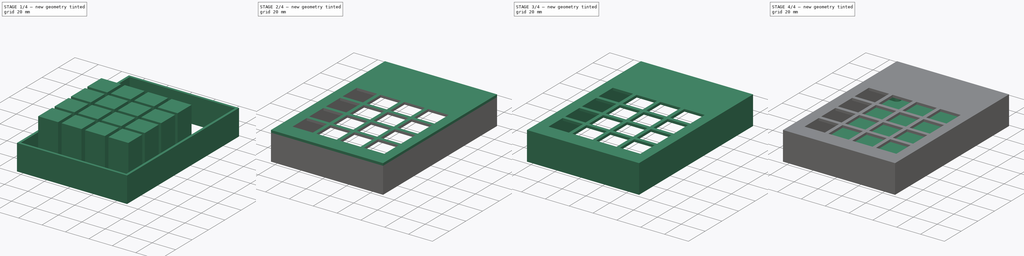
[diagram: build sequence overview — one tinted view per stage of 4, left to right]
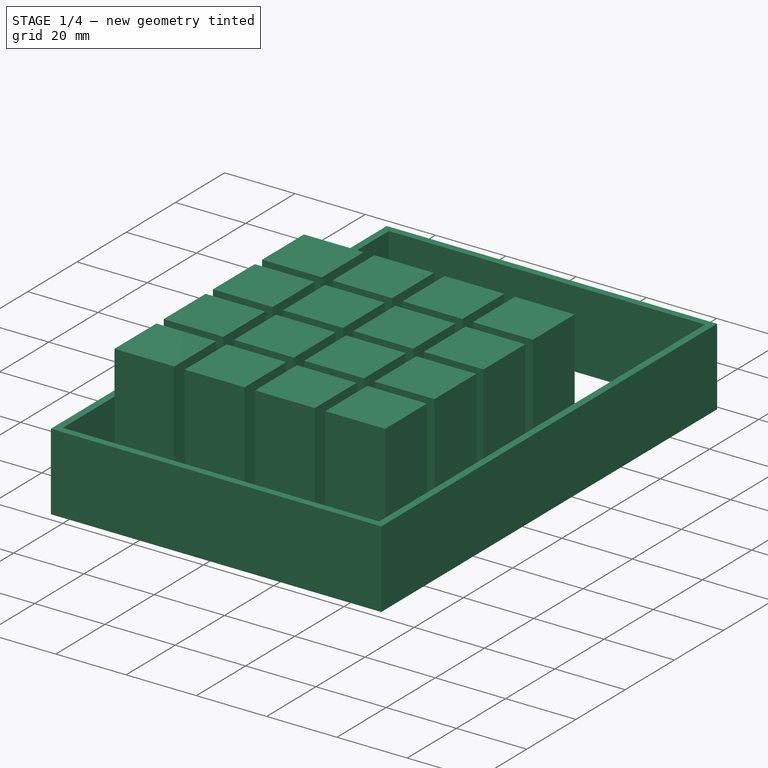
[diagram: stage 1 of 4 — iso view after this stage's code; geometry added in this stage tinted green]
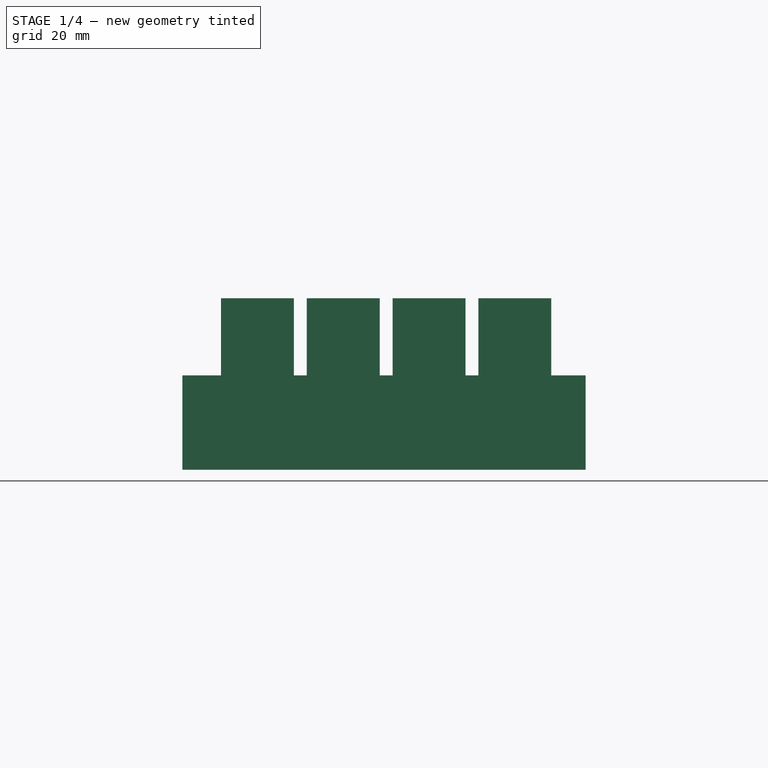
[diagram: stage 1 of 4 — front view after this stage's code; geometry added in this stage tinted green]
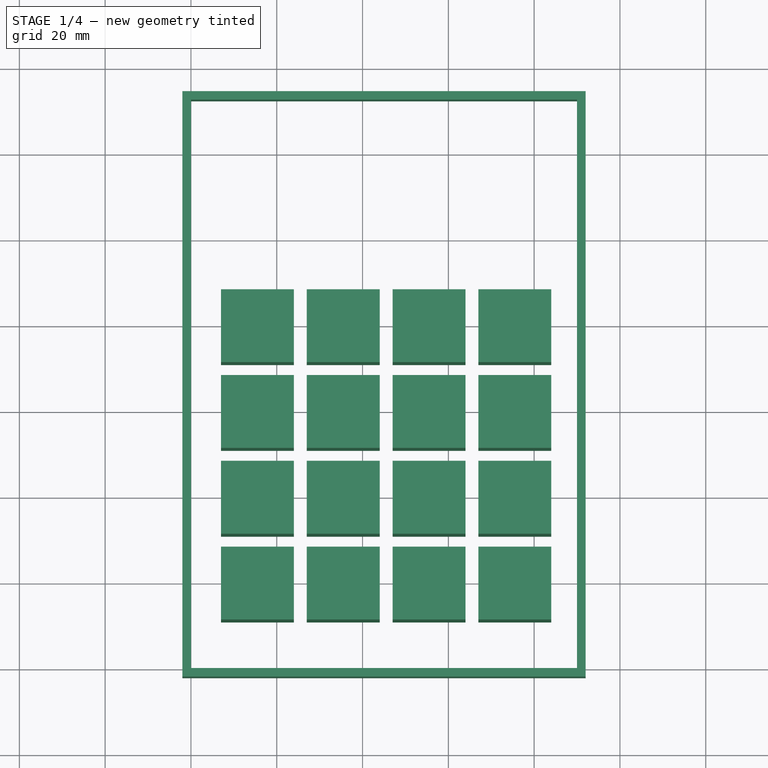
[diagram: stage 1 of 4 — top view after this stage's code; geometry added in this stage tinted green]
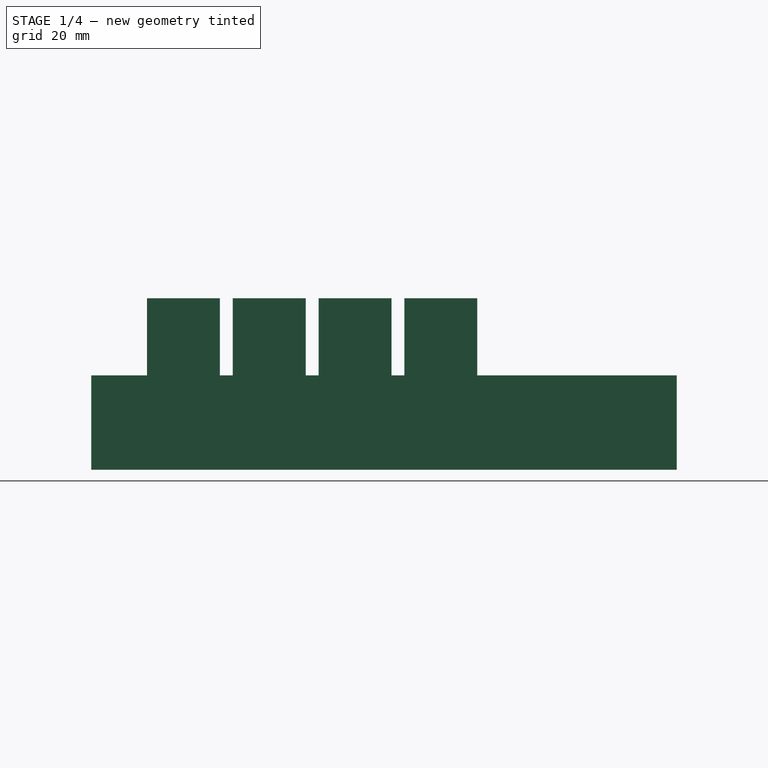
[diagram: stage 1 of 4 — right view after this stage's code; geometry added in this stage tinted green]
FCSTD DOCUMENT  (FreeCAD 0.15R4671 (Git))
Label: Enclosure
License: All rights reserved
LicenseURL: http://en.wikipedia.org/wiki/All_rights_reserved
objects: Sketcher::SketchObject×6, PartDesign::Pad×5, Part::MultiFuse×3, App::VRMLObject×1, Part::FeaturePython×1, Part::Cut×1, PartDesign::Pocket×1
note: 23 computed .brp shape members not serialized (recipe doc carries the construction recipe); baked Part::Feature solids carry a one-line shape summary decoded from their .brp

FEATURE [PartDesign::Pad] Pad004
  Length = 22
  Length2 = 100
  Sketch = -> Sketch
  Type = 0
FEATURE [Sketcher::SketchObject] Sketch006
  sketch-geometry (4):
    g0: LineSegment StartX=7 StartY=11 StartZ=0 EndX=24 EndY=11 EndZ=0
    g1: LineSegment StartX=24 StartY=11 StartZ=0 EndX=24 EndY=28 EndZ=0
    g2: LineSegment StartX=24 StartY=28 StartZ=0 EndX=7 EndY=28 EndZ=0
    g3: LineSegment StartX=7 StartY=28 StartZ=0 EndX=7 EndY=11 EndZ=0
  constraints (12):
    c: Coincident(g0,g1)
    c: Coincident(g1,g2)
    c: Coincident(g2,g3)
    c: Coincident(g3,g0)
    c: Horizontal(g0)
    c: Horizontal(g2)
    c: Vertical(g1)
    c: Vertical(g3)
    c: Distance(g1) = 17
    c: Distance(g0) = 17
    c: DistanceX(g-2,g0) = 7
    c: DistanceY(g-1,g0) = 11
FEATURE [PartDesign::Pad] Pad005
  Length = 40
  Length2 = 128
  Sketch = -> Sketch006
  Type = 0
FEATURE [Part::FeaturePython] Array  # Draft array (typed FeaturePython)
  Angle = 360
  ArrayType = 0
  Axis = (0,0,1)
  Base = -> Pad005
  Center = (0,0,0)
  Fuse = false
  IntervalAxis = (0,0,0)
  IntervalX = (20,0,0)
  IntervalY = (0,20,0)
  IntervalZ = (0,0,0)
  NumberPolar = 1
  NumberX = 4
  NumberY = 4
  NumberZ = 1
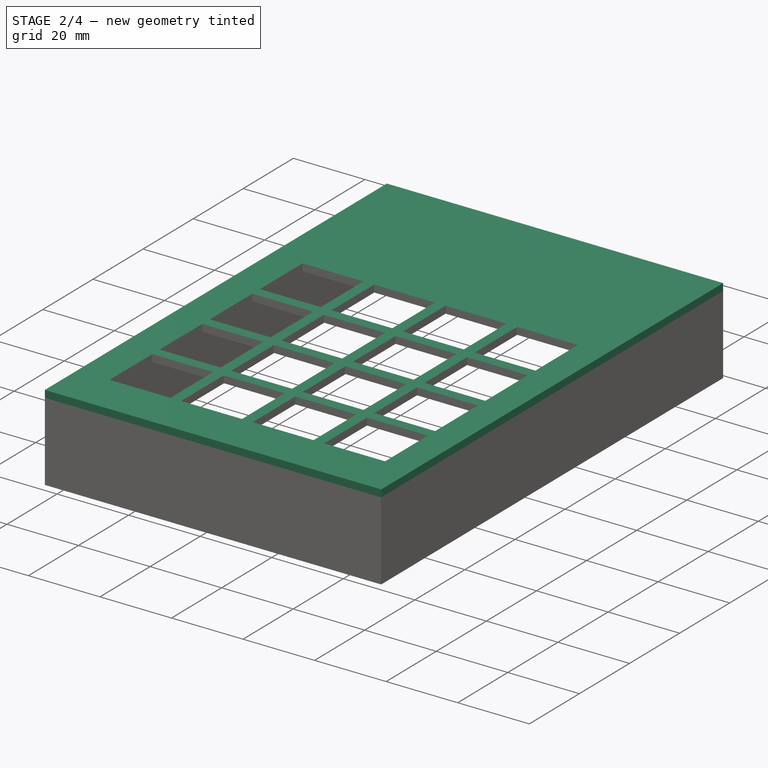
[diagram: stage 2 of 4 — iso view after this stage's code; geometry added in this stage tinted green]
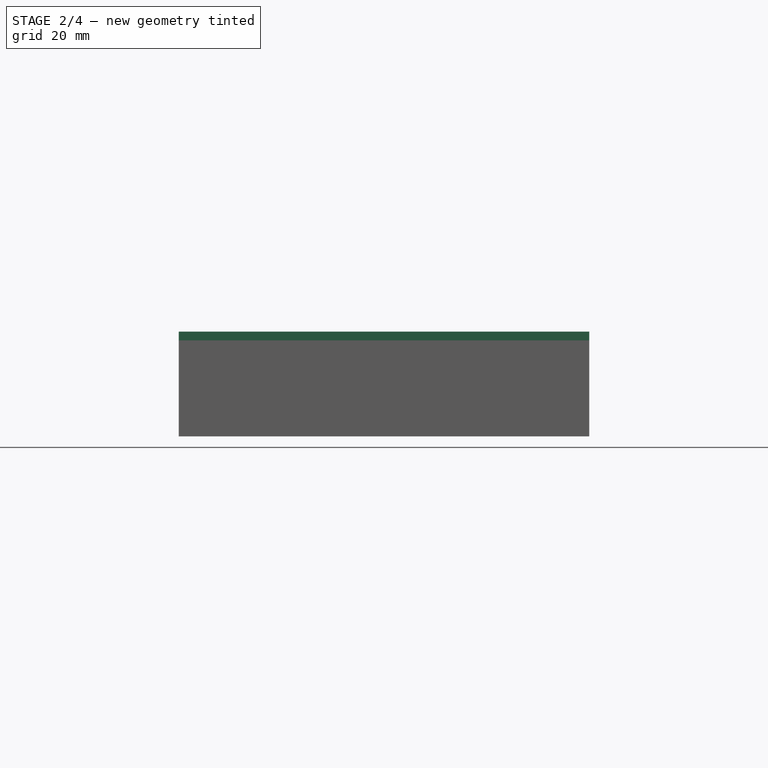
[diagram: stage 2 of 4 — front view after this stage's code; geometry added in this stage tinted green]
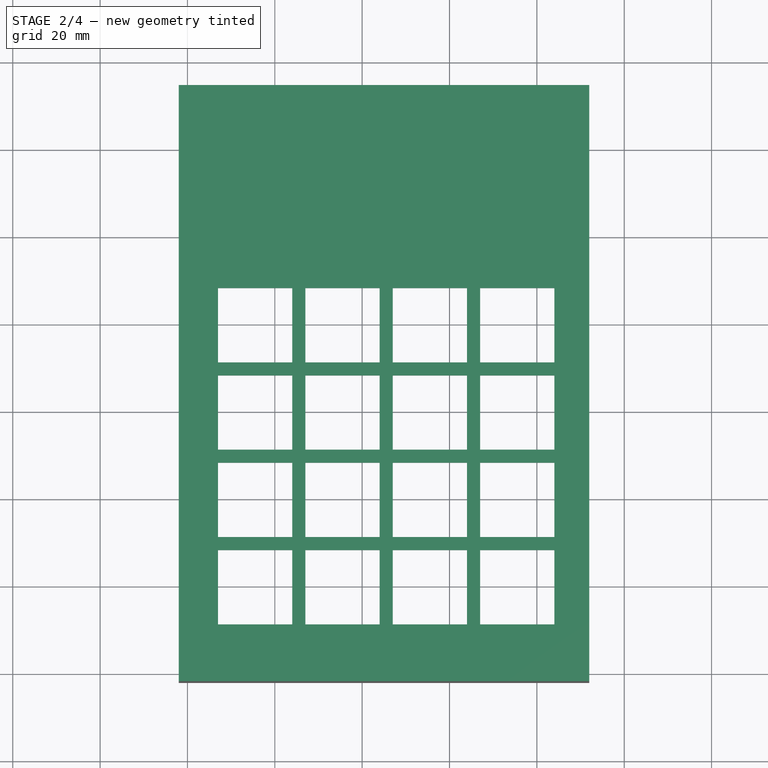
[diagram: stage 2 of 4 — top view after this stage's code; geometry added in this stage tinted green]
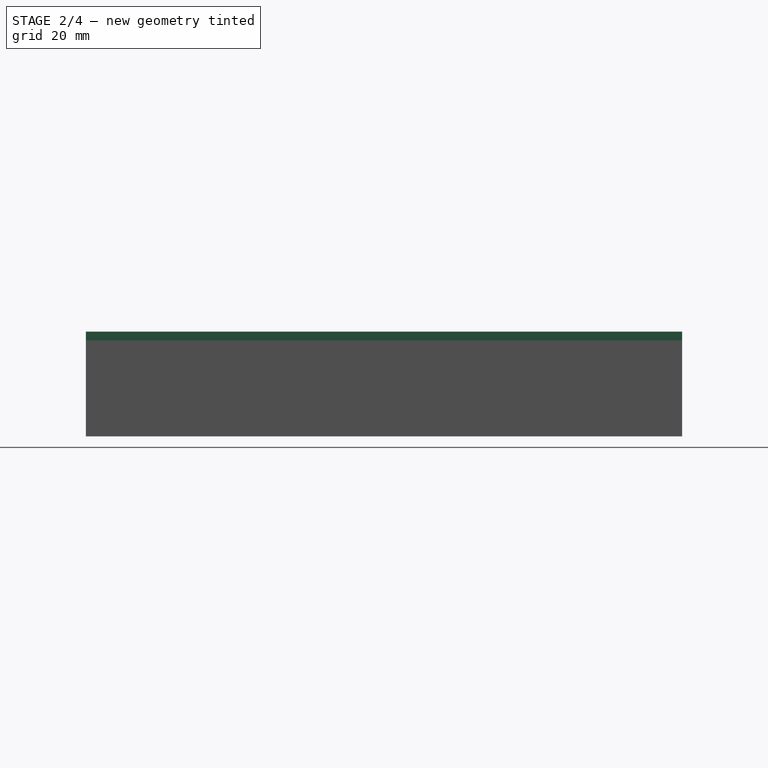
[diagram: stage 2 of 4 — right view after this stage's code; geometry added in this stage tinted green]
FEATURE [Sketcher::SketchObject] Sketch001  label="Top"
  Placement = pos=(0,0,22) rot=(0,0,1;0rad)
  Support = -> Pad004 [Face10]
  sketch-geometry (4):
    g0: LineSegment StartX=92 StartY=134.5 StartZ=0 EndX=-2 EndY=134.5 EndZ=0
    g1: LineSegment StartX=-2 StartY=134.5 StartZ=0 EndX=-2 EndY=-2 EndZ=0
    g2: LineSegment StartX=-2 StartY=-2 StartZ=0 EndX=92 EndY=-2 EndZ=0
    g3: LineSegment StartX=92 StartY=-2 StartZ=0 EndX=92 EndY=134.5 EndZ=0
  constraints (12):
    c: Coincident(g0,g1)
    c: Coincident(g1,g2)
    c: Coincident(g2,g3)
    c: Coincident(g3,g0)
    c: Horizontal(g0)
    c: Horizontal(g2)
    c: Vertical(g1)
    c: Vertical(g3)
    c: DistanceX(g-2,g1) = -2
    c: DistanceY(g-1,g1) = -2
    c: Distance(g2) = 94
    c: Distance(g3) = 136.5
FEATURE [PartDesign::Pad] Pad003
  Length = 2
  Length2 = 100
  Sketch = -> Sketch001
  Type = 0
FEATURE [Part::MultiFuse] Fusion001
  Shapes = -> [Pad003,Pad004]
FEATURE [Part::Cut] Cut
  Base = -> Fusion001
  Tool = -> Array
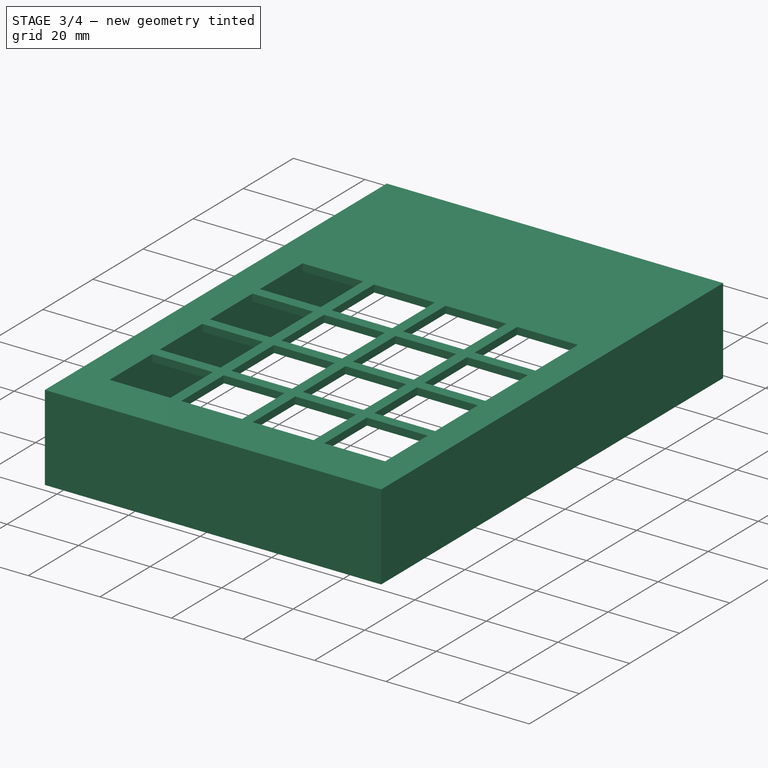
[diagram: stage 3 of 4 — iso view after this stage's code; geometry added in this stage tinted green]
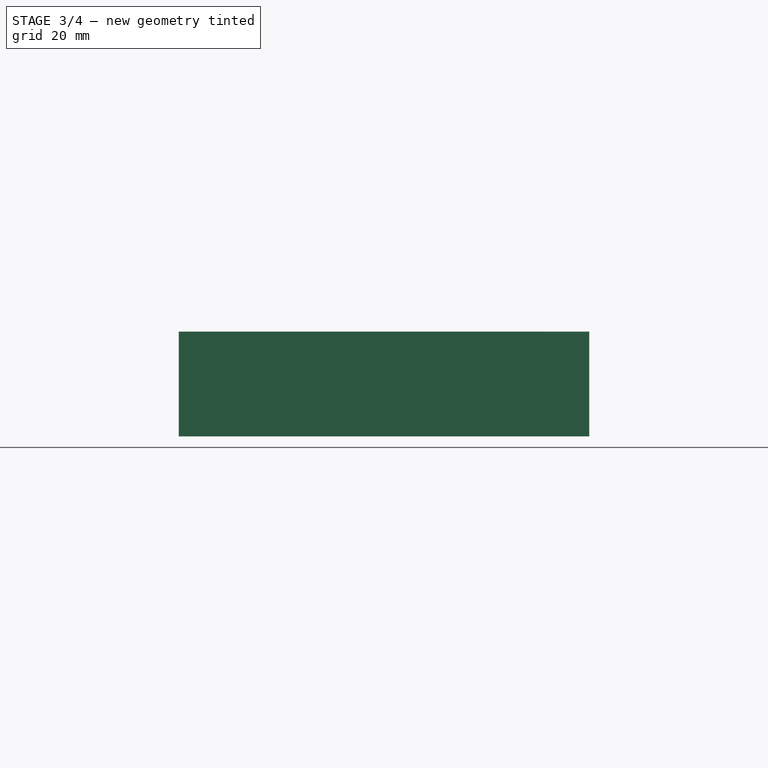
[diagram: stage 3 of 4 — front view after this stage's code; geometry added in this stage tinted green]
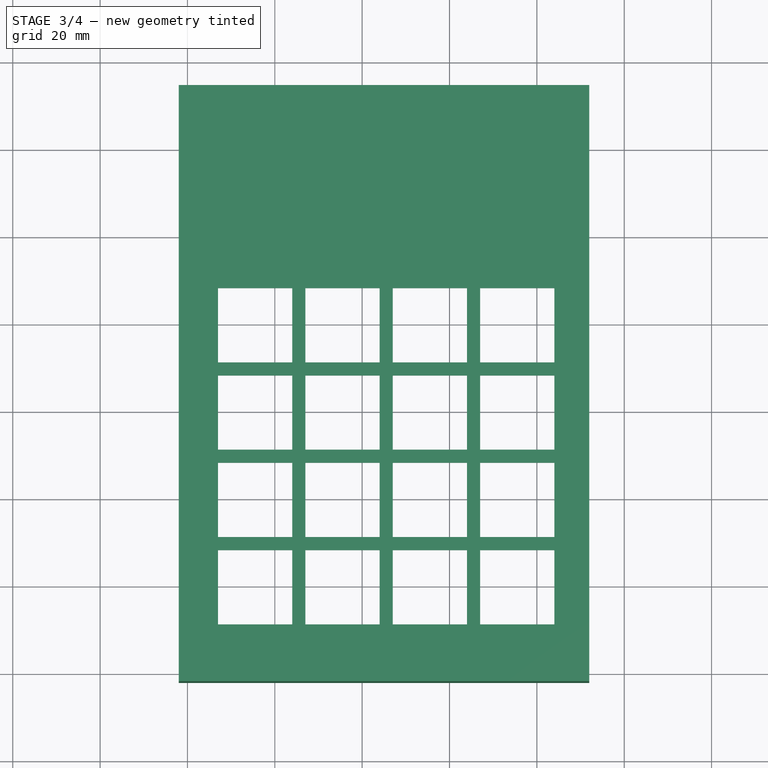
[diagram: stage 3 of 4 — top view after this stage's code; geometry added in this stage tinted green]
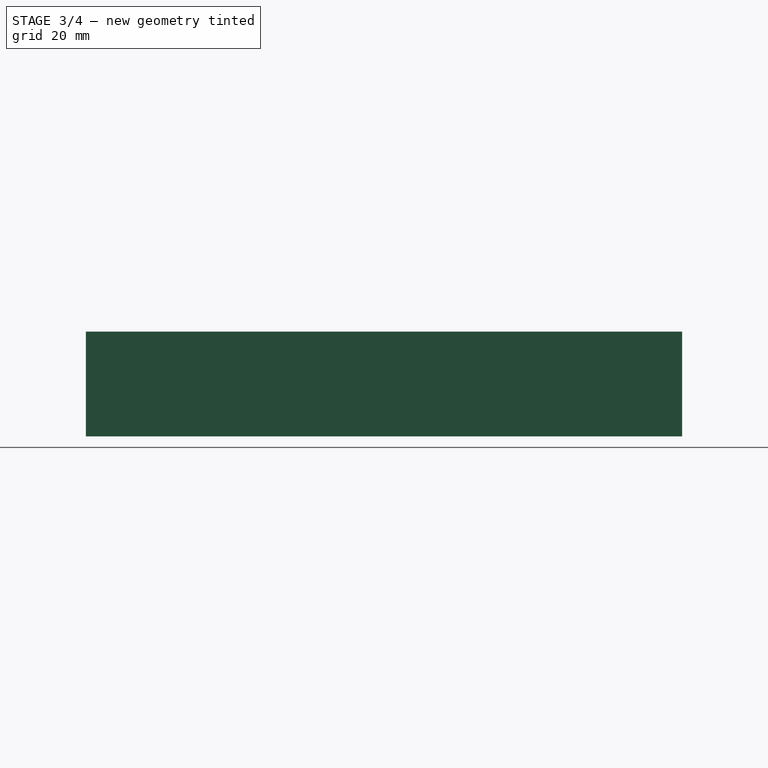
[diagram: stage 3 of 4 — right view after this stage's code; geometry added in this stage tinted green]
FEATURE [Sketcher::SketchObject] Sketch007
  Placement = pos=(0,134.5,0) rot=(0,0.707107,0.707107;3.14159rad)
  Support = -> Cut [Face70]
  sketch-geometry (4):
    g0: ArcOfCircle CenterX=-48 CenterY=11.7214 CenterZ=0 NormalX=0 NormalY=0 NormalZ=1 Radius=2 StartAngle=1.5708 EndAngle=4.71239
    g1: ArcOfCircle CenterX=-43 CenterY=11.7214 CenterZ=0 NormalX=0 NormalY=0 NormalZ=1 Radius=2 StartAngle=4.71239 EndAngle=7.85398
    g2: LineSegment StartX=-48 StartY=9.72139 StartZ=0 EndX=-43 EndY=9.72139 EndZ=0
    g3: LineSegment StartX=-48 StartY=13.7214 StartZ=0 EndX=-43 EndY=13.7214 EndZ=0
  constraints (9):
    c: Tangent(g0,g3) = 1.5708
    c: Tangent(g0,g2) = -1.5708
    c: Tangent(g2,g1) = -1.5708
    c: Tangent(g3,g1) = 1.5708
    c: Horizontal(g2)
    c: Equal(g0,g1)
    c: Distance(g3) = 5
    c: Radius(g1) = 2
    c: DistanceX(g-2,g1) = -43
FEATURE [PartDesign::Pocket] Pocket
  Length = 0
  Sketch = -> Sketch007
  Type = 2
FEATURE [Part::MultiFuse] Fusion002
  Shapes = -> [Cut,Pocket]
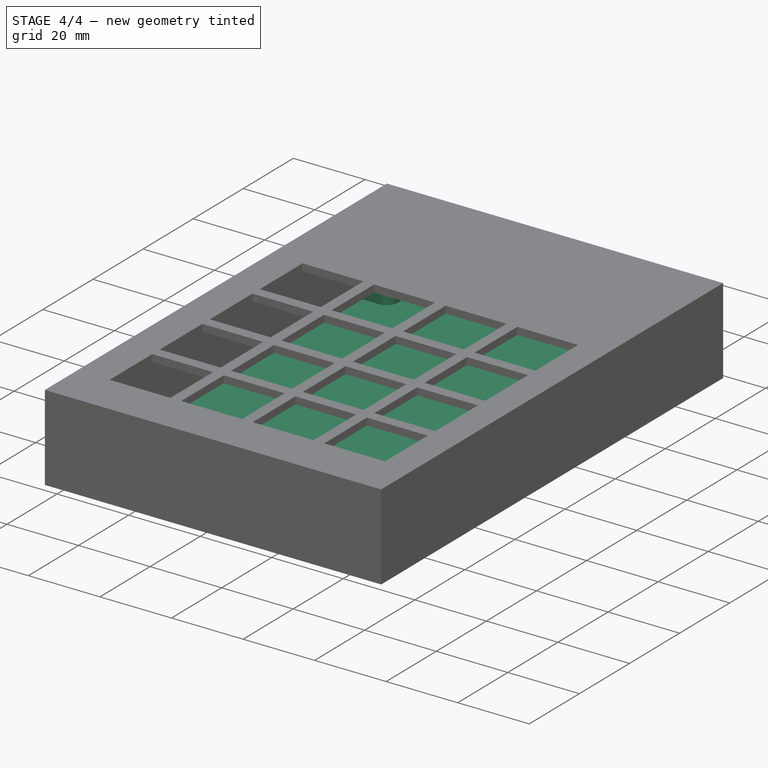
[diagram: stage 4 of 4 — iso view after this stage's code; geometry added in this stage tinted green]
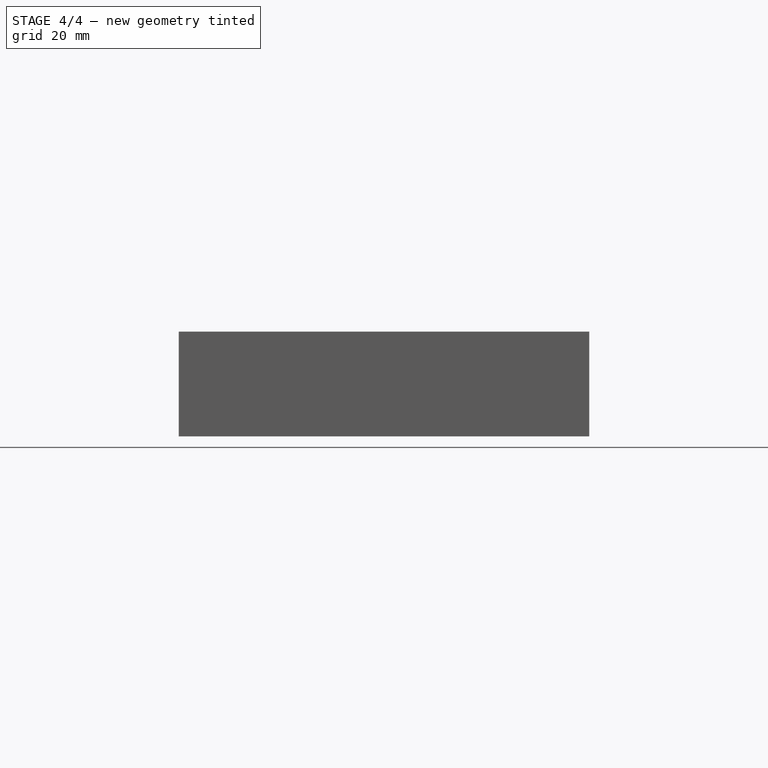
[diagram: stage 4 of 4 — front view after this stage's code; geometry added in this stage tinted green]
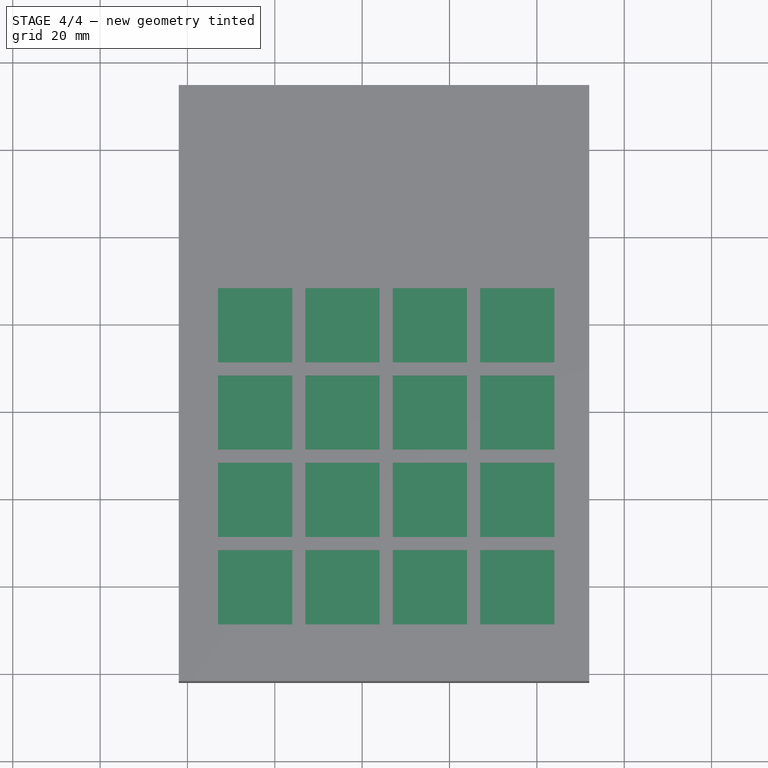
[diagram: stage 4 of 4 — top view after this stage's code; geometry added in this stage tinted green]
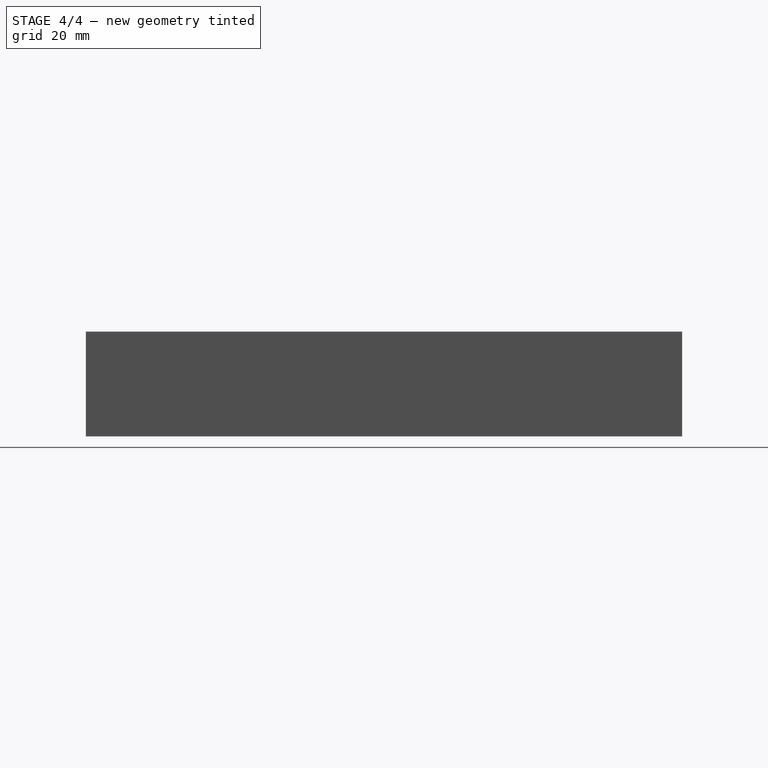
[diagram: stage 4 of 4 — right view after this stage's code; geometry added in this stage tinted green]
FEATURE [App::VRMLObject] Cherry_MX_Keyboard_PCB
  Placement = pos=(-47.5,165,7.5) rot=(0,0,1;0rad)
FEATURE [Sketcher::SketchObject] Sketch  label="Bottom"
  sketch-geometry (8):
    g0: LineSegment StartX=-2 StartY=134.5 StartZ=0 EndX=92 EndY=134.5 EndZ=0
    g1: LineSegment StartX=92 StartY=134.5 StartZ=0 EndX=92 EndY=-2 EndZ=0
    g2: LineSegment StartX=92 StartY=-2 StartZ=0 EndX=-2 EndY=-2 EndZ=0
    g3: LineSegment StartX=-2 StartY=-2 StartZ=0 EndX=-2 EndY=134.5 EndZ=0
    g4: LineSegment StartX=0 StartY=0 StartZ=0 EndX=90 EndY=0 EndZ=0
    g5: LineSegment StartX=90 StartY=0 StartZ=0 EndX=90 EndY=132.5 EndZ=0
    g6: LineSegment StartX=90 StartY=132.5 StartZ=0 EndX=0 EndY=132.5 EndZ=0
    g7: LineSegment StartX=0 StartY=132.5 StartZ=0 EndX=0 EndY=0 EndZ=0
  constraints (23):
    c: Horizontal(g0)
    c: Horizontal(g2)
    c: Vertical(g1)
    c: Vertical(g3)
    c: Distance(g0) = 94
    c: Distance(g1) = 136.5
    c: Coincident(g2,g3)
    c: Coincident(g1,g2)
    c: Coincident(g0,g1)
    c: Coincident(g0,g3)
    c: DistanceY(g-1,g2) = -2
    c: DistanceX(g-2,g2) = -2
    c: Coincident(g4,g5)
    c: Coincident(g5,g6)
    c: Coincident(g6,g7)
    c: Coincident(g7,g4)
    c: Horizontal(g4)
    c: Horizontal(g6)
    c: Vertical(g5)
    c: Vertical(g7)
    c: Distance(g6) = 90
    c: Distance(g5) = 132.5
    c: Coincident(g4,g-1)
FEATURE [Sketcher::SketchObject] Sketch003
  sketch-geometry (4):
    g0: LineSegment StartX=0 StartY=0 StartZ=0 EndX=90 EndY=0 EndZ=0
    g1: LineSegment StartX=90 StartY=0 StartZ=0 EndX=90 EndY=132.5 EndZ=0
    g2: LineSegment StartX=90 StartY=132.5 StartZ=0 EndX=0 EndY=132.5 EndZ=0
    g3: LineSegment StartX=0 StartY=132.5 StartZ=0 EndX=0 EndY=0 EndZ=0
  constraints (11):
    c: Coincident(g0,g1)
    c: Coincident(g1,g2)
    c: Coincident(g2,g3)
    c: Coincident(g3,g0)
    c: Horizontal(g0)
    c: Horizontal(g2)
    c: Vertical(g1)
    c: Vertical(g3)
    c: Distance(g1,g3) = 90
    c: Distance(g1) = 132.5
    c: Coincident(g0,g-1)
FEATURE [PartDesign::Pad] Pad  label="Base"
  Length = 2
  Length2 = 100
  Sketch = -> Sketch003
  Type = 0
FEATURE [Sketcher::SketchObject] Sketch005
  Placement = pos=(0,0,2) rot=(0,0,1;0rad)
  Support = -> Pad [Face6]
  sketch-geometry (24):
    g0: Circle CenterX=5 CenterY=5 CenterZ=0 NormalX=0 NormalY=0 NormalZ=1 Radius=1.5
    g1: LineSegment StartX=0 StartY=10 StartZ=0 EndX=7 EndY=10 EndZ=0
    g2: LineSegment StartX=10 StartY=7 StartZ=0 EndX=10 EndY=0 EndZ=0
    g3: ArcOfCircle CenterX=7 CenterY=7 CenterZ=0 NormalX=0 NormalY=0 NormalZ=1 Radius=3 StartAngle=0 EndAngle=1.5708
    g4: LineSegment StartX=10 StartY=0 StartZ=0 EndX=0 EndY=0 EndZ=0
    g5: LineSegment StartX=0 StartY=10 StartZ=0 EndX=0 EndY=0 EndZ=0
    g6: Circle CenterX=85 CenterY=5 CenterZ=0 NormalX=0 NormalY=0 NormalZ=1 Radius=1.5
    g7: LineSegment StartX=84 StartY=9 StartZ=0 EndX=90 EndY=9 EndZ=0
    g8: LineSegment StartX=90 StartY=9 StartZ=0 EndX=90 EndY=0 EndZ=0
    g9: LineSegment StartX=90 StartY=0 StartZ=0 EndX=81 EndY=0 EndZ=0
    g10: LineSegment StartX=81 StartY=0 StartZ=0 EndX=81 EndY=6 EndZ=0
    g11: ArcOfCircle CenterX=84 CenterY=6 CenterZ=0 NormalX=0 NormalY=0 NormalZ=1 Radius=3 StartAngle=1.5708 EndAngle=3.14159
    g12: Circle CenterX=85 CenterY=125 CenterZ=0 NormalX=0 NormalY=0 NormalZ=1 Radius=1.5
    g13: LineSegment StartX=83 StartY=120 StartZ=0 EndX=90 EndY=120 EndZ=0
    g14: LineSegment StartX=90 StartY=120 StartZ=0 EndX=90 EndY=132.5 EndZ=0
    g15: LineSegment StartX=90 StartY=132.5 StartZ=0 EndX=80 EndY=132.5 EndZ=0
    g16: LineSegment StartX=80 StartY=132.5 StartZ=0 EndX=80 EndY=123 EndZ=0
    g17: ArcOfCircle CenterX=83 CenterY=123 CenterZ=0 NormalX=0 NormalY=0 NormalZ=1 Radius=3 StartAngle=3.14159 EndAngle=4.71239
    g18: Circle CenterX=5 CenterY=125 CenterZ=0 NormalX=0 NormalY=0 NormalZ=1 Radius=1.5
    g19: LineSegment StartX=7 StartY=118.561 StartZ=0 EndX=0 EndY=118.561 EndZ=0
    g20: LineSegment StartX=0 StartY=118.561 StartZ=0 EndX=0 EndY=132.458 EndZ=0
    g21: LineSegment StartX=0 StartY=132.458 StartZ=0 EndX=10 EndY=132.458 EndZ=0
    g22: LineSegment StartX=10 StartY=132.458 StartZ=0 EndX=10 EndY=121.561 EndZ=0
    g23: ArcOfCircle CenterX=7 CenterY=121.561 CenterZ=0 NormalX=0 NormalY=0 NormalZ=1 Radius=3 StartAngle=4.71239 EndAngle=6.28319
  constraints (64):
    c: Radius(g0) = 1.5
    c: DistanceX(g-2,g0) = 5
    c: DistanceY(g-1,g0) = 5
    c: Perpendicular(g-2,g1)
    c: PointOnObject(g1,g-2)
    c: Tangent(g2,g3) = 1.5708
    c: Tangent(g1,g3) = 1.5708
    c: Distance(g1) = 7
    c: Distance(g2) = 7
    c: Perpendicular(g-1,g2)
    c: PointOnObject(g2,g-1)
    c: DistanceY(g-1,g1) = 10
    c: Radius(g6) = 1.5
    c: Distance(g6,g0) = 80
    c: DistanceY(g-1,g6) = 5
    c: Coincident(g7,g8)
    c: Coincident(g8,g9)
    c: Coincident(g9,g10)
    c: Horizontal(g7)
    c: Horizontal(g9)
    c: Vertical(g8)
    c: Vertical(g10)
    c: Distance(g6,g8) = 5
    c: Distance(g6,g7) = 4
    c: Distance(g6,g10) = 4
    c: PointOnObject(g8,g-1)
    c: Tangent(g7,g11) = 1.5708
    c: Tangent(g10,g11) = 1.5708
    c: Radius(g12) = 1.5
    c: Distance(g12,g6) = 120
    c: DistanceX(g-2,g12) = 85
    c: Equal(g11,g3)
    c: Coincident(g1,g5)
    c: Coincident(g4,g5)
    c: Coincident(g4,g-1)
    c: Coincident(g2,g4)
    c: Coincident(g13,g14)
    c: Coincident(g14,g15)
    c: Coincident(g15,g16)
    c: Horizontal(g13)
    c: Horizontal(g15)
    c: Vertical(g14)
    c: Vertical(g16)
    c: Distance(g12,g15) = 7.5
    c: Distance(g12,g14) = 5
    c: Tangent(g16,g17) = -1.5708
    c: Tangent(g13,g17) = -1.5708
    c: Distance(g12,g16) = 5
    c: Distance(g12,g13) = 5
    c: Radius(g17) = 3
    c: Distance(g18,g12) = 80
    c: Distance(g18,g0) = 120
    c: Radius(g18) = 1.5
    c: Coincident(g19,g20)
    c: Coincident(g20,g21)
    c: Coincident(g21,g22)
    c: Horizontal(g19)
    c: Horizontal(g21)
    c: Vertical(g20)
    c: Vertical(g22)
    c: Tangent(g22,g23) = 1.5708
    c: Tangent(g19,g23) = 1.5708
    c: Distance(g18,g22) = 5
    c: Radius(g23) = 3
FEATURE [PartDesign::Pad] Pad001  label="Soportes"
  Length = 5
  Length2 = 100
  Sketch = -> Sketch005
  Type = 0
FEATURE [Part::MultiFuse] Fusion
  Shapes = -> [Pad001,Pad]
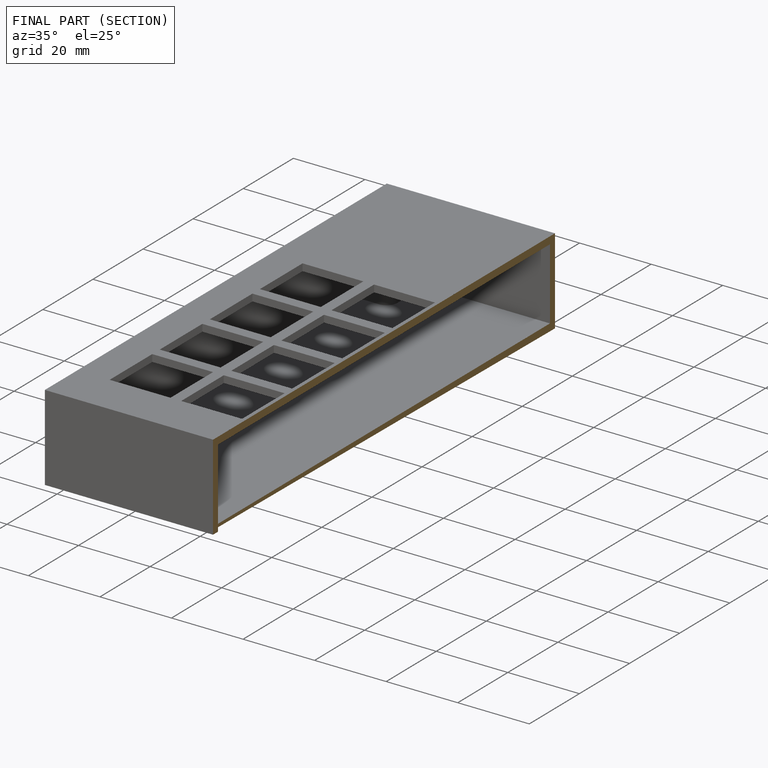
[diagram: finished part — half-section view (interior)]
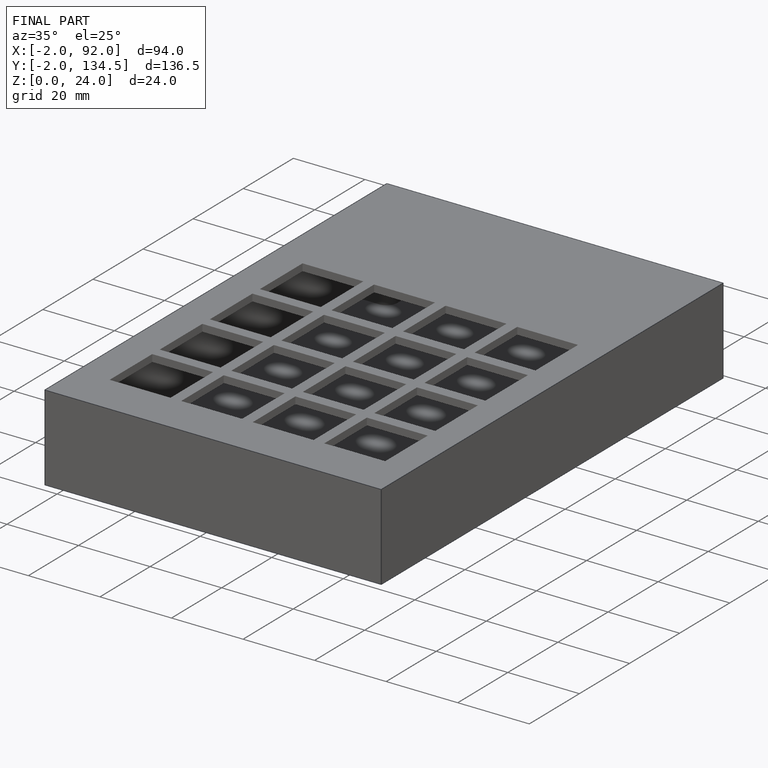
[diagram: finished part — iso view with bounding-box wireframe]
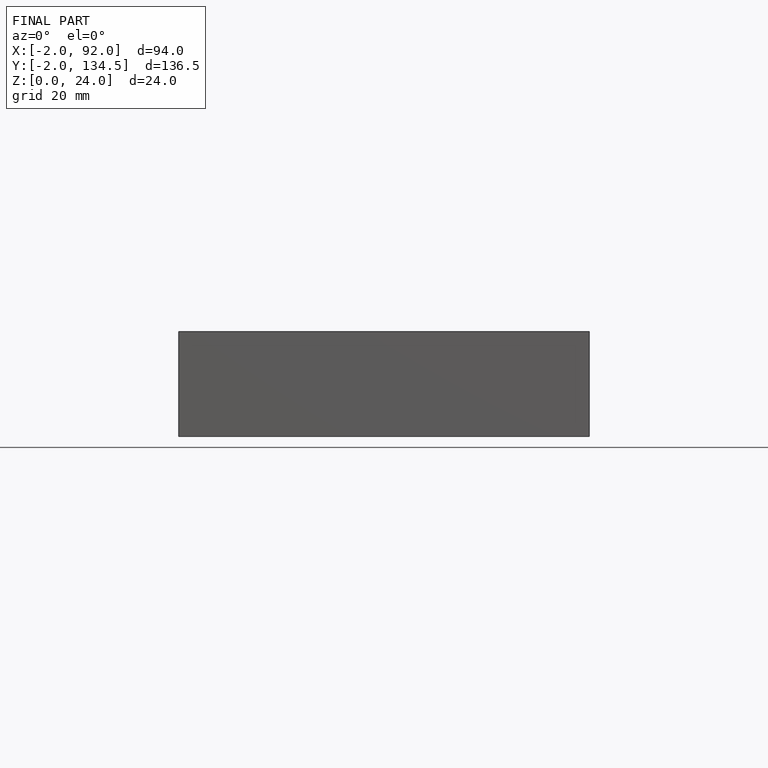
[diagram: finished part — front view with bounding-box wireframe]
